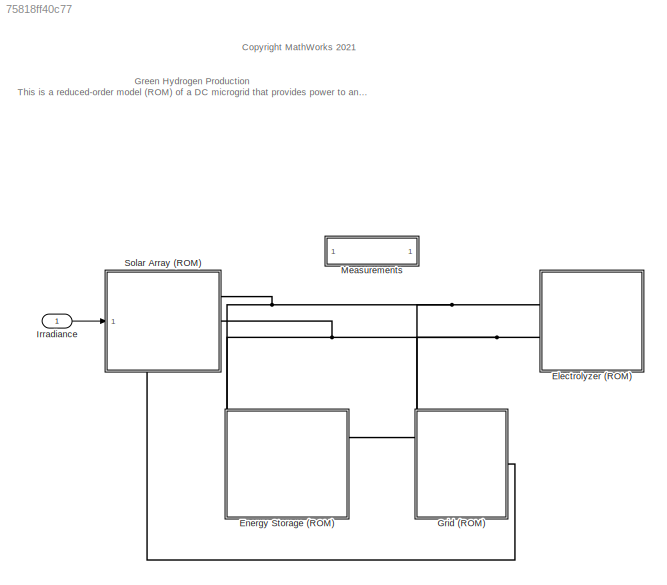
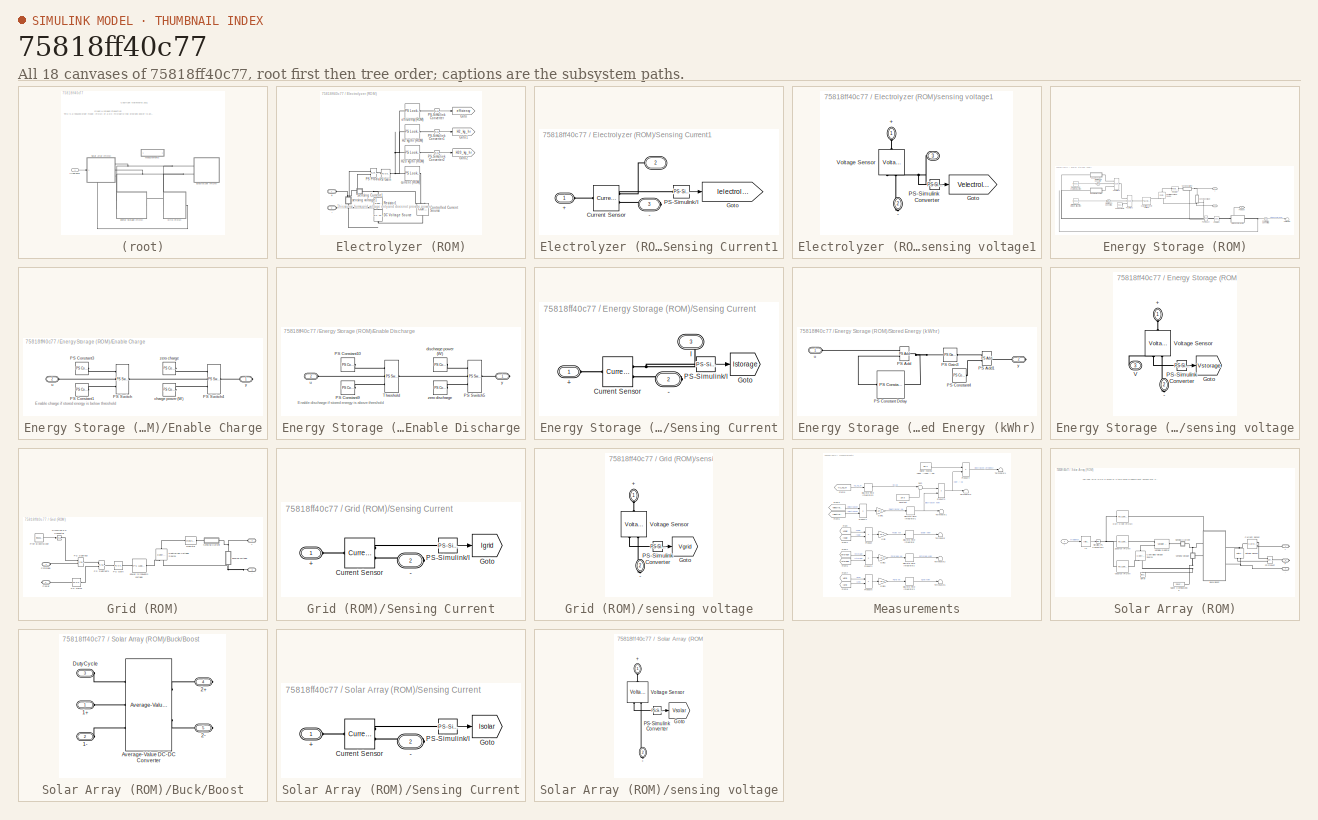
[diagram: thumbnail index - all 18 canvases of the model, root first then tree order]
MODEL slx_75818ff40c77
KIND model
CONFIG AbsTol = 1e-3
CONFIG EnableMultiTasking = off
CONFIG FixedStep = Ts
CONFIG InitFcn = Ts = 3600;\n\n
CONFIG MaxStep = auto
CONFIG MinStep = auto
CONFIG RelTol = 1e-3
CONFIG SampleTimeConstraint = Unconstrained
CONFIG SolverName = FixedStepAuto
CONFIG StartTime = 0.0
CONFIG StopFcn = ee_addSimlogTimeStamp(bdroot)
CONFIG StopTime = 24*3600*365-3600
BLOCK [SubSystem] Electrolyzer (ROM)
  NameLocation = top
  Ports = [0, 0, 0, 0, 0, 2]
  RequestExecContextInheritance = off
BLOCK [PMIOPort] Electrolyzer (ROM)/+
  Side = Left
BLOCK [PMIOPort] Electrolyzer (ROM)/-
  Port = 2
  Side = Left
BLOCK [Reference] Electrolyzer (ROM)/Controlled Current Source  REF=fl_lib/Electrical/Electrical Sources/Controlled Current
Source
  NameLocation = left
  Ports = [0, 0, 0, 0, 0, 1, 2]
  SourceBlock = fl_lib/Electrical/Electrical Sources/Controlled Current\nSource
  SourceProductBaseCode = SS
  SourceType = Controlled Current\nSource
BLOCK [Reference] Electrolyzer (ROM)/DC Voltage Source  REF=fl_lib/Electrical/Electrical Sources/DC Voltage Source
  NameLocation = right
  Ports = [0, 0, 0, 0, 0, 1, 1]
  SourceBlock = fl_lib/Electrical/Electrical Sources/DC Voltage Source
  SourceProductBaseCode = SS
  SourceType = DC Voltage Source
BLOCK [Goto] Electrolyzer (ROM)/Goto
  GotoTag = efficiency
  TagVisibility = global
BLOCK [Goto] Electrolyzer (ROM)/Goto1
  GotoTag = H2_kg_hr
  TagVisibility = global
BLOCK [Goto] Electrolyzer (ROM)/Goto2
  GotoTag = H20_kg_hr
  TagVisibility = global
BLOCK [Reference] Electrolyzer (ROM)/H2 kg//hr (ROM)  REF=fl_lib/Physical Signals/Lookup Tables/PS Lookup Table (1D)
  Ports = [0, 0, 0, 0, 0, 1, 1]
  SourceBlock = fl_lib/Physical Signals/Lookup Tables/PS Lookup Table (1D)
  SourceProductBaseCode = SS
  SourceType = PS Lookup Table (1D)
BLOCK [Reference] Electrolyzer (ROM)/H20 kg//hr (ROM)  REF=fl_lib/Physical Signals/Lookup Tables/PS Lookup Table (1D)
  Ports = [0, 0, 0, 0, 0, 1, 1]
  SourceBlock = fl_lib/Physical Signals/Lookup Tables/PS Lookup Table (1D)
  SourceProductBaseCode = SS
  SourceType = PS Lookup Table (1D)
BLOCK [Reference] Electrolyzer (ROM)/PS Gain  REF=fl_lib/Physical Signals/Functions/PS Gain
  Ports = [0, 0, 0, 0, 0, 1, 1]
  SourceBlock = fl_lib/Physical Signals/Functions/PS Gain
  SourceProductBaseCode = SS
  SourceType = PS Gain
BLOCK [Reference] Electrolyzer (ROM)/PS Product  REF=fl_lib/Physical Signals/Functions/PS Product
  Ports = [0, 0, 0, 0, 0, 2, 1]
  SourceBlock = fl_lib/Physical Signals/Functions/PS Product
  SourceProductBaseCode = SS
  SourceType = PS Product
BLOCK [Reference] Electrolyzer (ROM)/PS-Simulink Converter  REF=nesl_utility/PS-Simulink
Converter
  Ports = [0, 1, 0, 0, 0, 1]
  SourceBlock = nesl_utility/PS-Simulink\nConverter
  SourceProductBaseCode = PW,SS
  SourceType = PS-Simulink\nConverter
BLOCK [Reference] Electrolyzer (ROM)/PS-Simulink Converter1  REF=nesl_utility/PS-Simulink
Converter
  Ports = [0, 1, 0, 0, 0, 1]
  SourceBlock = nesl_utility/PS-Simulink\nConverter
  SourceProductBaseCode = PW,SS
  SourceType = PS-Simulink\nConverter
BLOCK [Reference] Electrolyzer (ROM)/PS-Simulink Converter2  REF=nesl_utility/PS-Simulink
Converter
  Ports = [0, 1, 0, 0, 0, 1]
  SourceBlock = nesl_utility/PS-Simulink\nConverter
  SourceProductBaseCode = PW,SS
  SourceType = PS-Simulink\nConverter
BLOCK [Reference] Electrolyzer (ROM)/Resistor1  REF=fl_lib/Electrical/Electrical Elements/Resistor
  NameLocation = left
  Ports = [0, 0, 0, 0, 0, 1, 1]
  SourceBlock = fl_lib/Electrical/Electrical Elements/Resistor
  SourceProductBaseCode = SS
  SourceType = Resistor
BLOCK [SubSystem] Electrolyzer (ROM)/Sensing Current1
  PortSchema = {"entries":[{"content":{"sides":[{"content":{"connectorIds":["LConn1"]},"type":"ConnectorPlacement.EquallySpacedRectSide","uuid":"b94629f0-79a7-4e9f-9b19-2ebf3bcf4c67"},{"content":{"connectorIds":["RConn1"],"side":"RIGHT"},"type":"ConnectorPlacement.EquallySpacedRectSide","uuid":"77befbbf-81fe-4980-a27e-5f206100ddc5"},{"content":{"connectorIds":["LConn2"],"side":"TOP"},"type":"ConnectorPlacement.E...<+253ch>
  Ports = [0, 0, 0, 0, 0, 2, 1]
  RequestExecContextInheritance = off
BLOCK [PMIOPort] Electrolyzer (ROM)/Sensing Current1/ 
  Port = 2
  Side = Left
BLOCK [PMIOPort] Electrolyzer (ROM)/Sensing Current1/+
  Side = Left
BLOCK [PMIOPort] Electrolyzer (ROM)/Sensing Current1/-
  Port = 3
  Side = Right
BLOCK [Reference] Electrolyzer (ROM)/Sensing Current1/Current Sensor  REF=fl_lib/Electrical/Electrical Sensors/Current Sensor
  Ports = [0, 0, 0, 0, 0, 1, 2]
  SourceBlock = fl_lib/Electrical/Electrical Sensors/Current Sensor
  SourceProductBaseCode = SS
  SourceType = Current Sensor
BLOCK [Goto] Electrolyzer (ROM)/Sensing Current1/Goto
  GotoTag = Ielectrolyzer
  TagVisibility = global
BLOCK [Reference] Electrolyzer (ROM)/Sensing Current1/PS-Simulink//I  REF=nesl_utility/PS-Simulink
Converter
  Ports = [0, 1, 0, 0, 0, 1]
  SourceBlock = nesl_utility/PS-Simulink\nConverter
  SourceProductBaseCode = PW,SS
  SourceType = PS-Simulink\nConverter
BLOCK [Reference] Electrolyzer (ROM)/current (ROM)  REF=fl_lib/Physical Signals/Lookup Tables/PS Lookup Table (1D)
  Ports = [0, 0, 0, 0, 0, 1, 1]
  SourceBlock = fl_lib/Physical Signals/Lookup Tables/PS Lookup Table (1D)
  SourceProductBaseCode = SS
  SourceType = PS Lookup Table (1D)
BLOCK [Reference] Electrolyzer (ROM)/efficiency (ROM)  REF=fl_lib/Physical Signals/Lookup Tables/PS Lookup Table (1D)
  Ports = [0, 0, 0, 0, 0, 1, 1]
  SourceBlock = fl_lib/Physical Signals/Lookup Tables/PS Lookup Table (1D)
  SourceProductBaseCode = SS
  SourceType = PS Lookup Table (1D)
BLOCK [SubSystem] Electrolyzer (ROM)/sensing voltage1
  NameLocation = left
  Ports = [0, 0, 0, 0, 0, 2, 1]
  RequestExecContextInheritance = off
BLOCK [PMIOPort] Electrolyzer (ROM)/sensing voltage1/ 
  NameLocation = top
  Port = 3
  Side = Left
BLOCK [PMIOPort] Electrolyzer (ROM)/sensing voltage1/+
  NameLocation = left
  Side = Left
BLOCK [PMIOPort] Electrolyzer (ROM)/sensing voltage1/-
  NameLocation = left
  Port = 2
  Side = Right
BLOCK [Goto] Electrolyzer (ROM)/sensing voltage1/Goto
  GotoTag = Velectrolyzer
  TagVisibility = global
BLOCK [Reference] Electrolyzer (ROM)/sensing voltage1/PS-Simulink Converter  REF=nesl_utility/PS-Simulink
Converter
  Ports = [0, 1, 0, 0, 0, 1]
  SourceBlock = nesl_utility/PS-Simulink\nConverter
  SourceProductBaseCode = PW,SS
  SourceType = PS-Simulink\nConverter
BLOCK [Reference] Electrolyzer (ROM)/sensing voltage1/Voltage Sensor  REF=fl_lib/Electrical/Electrical Sensors/Voltage Sensor
  NameLocation = right
  Ports = [0, 0, 0, 0, 0, 1, 2]
  SourceBlock = fl_lib/Electrical/Electrical Sensors/Voltage Sensor
  SourceProductBaseCode = SS
  SourceType = Voltage Sensor
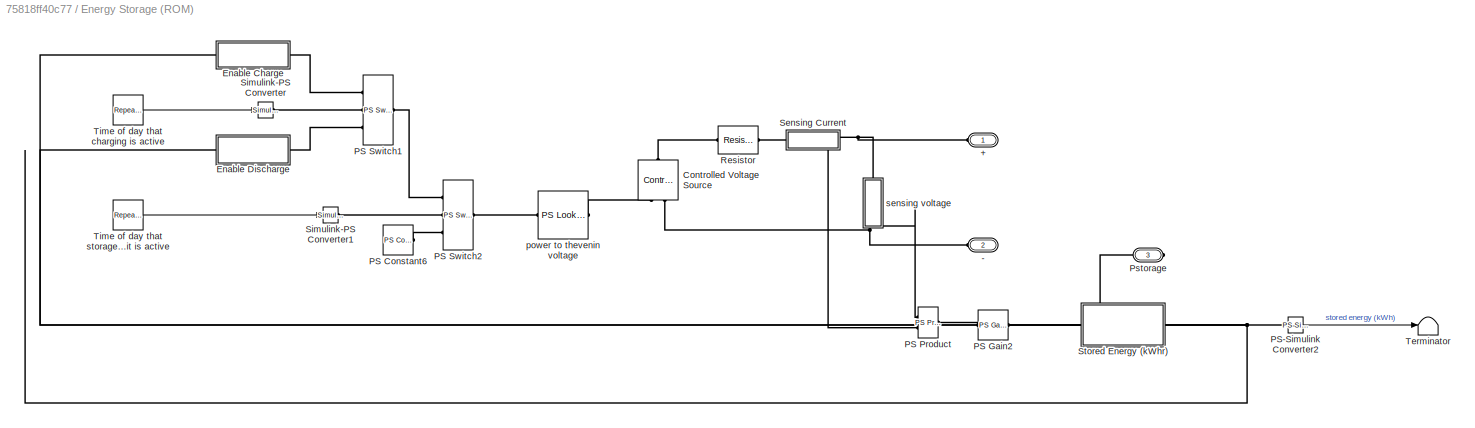
BLOCK [SubSystem] Energy Storage (ROM)
  PortSchema = {"entries":[{"content":{"sides":[{"content":{"connectorIds":[]},"type":"ConnectorPlacement.EquallySpacedRectSide","uuid":"4ce9e896-492d-4425-b4ff-f24d4b5e5863"},{"content":{"connectorIds":["RConn1"],"side":"RIGHT"},"type":"ConnectorPlacement.EquallySpacedRectSide","uuid":"930c7228-c80c-44c8-ab76-5d29522f1c4f"},{"content":{"connectorIds":["LConn1","LConn2"],"side":"TOP"},"type":"ConnectorPlacement....<+254ch>
  Ports = [0, 0, 0, 0, 0, 2, 1]
  RequestExecContextInheritance = off
BLOCK [PMIOPort] Energy Storage (ROM)/+
  NameLocation = top
  Side = Left
BLOCK [PMIOPort] Energy Storage (ROM)/-
  Port = 2
  Side = Left
BLOCK [Reference] Energy Storage (ROM)/Controlled Voltage Source  REF=fl_lib/Electrical/Electrical Sources/Controlled Voltage
Source
  NameLocation = right
  Ports = [0, 0, 0, 0, 0, 1, 2]
  SourceBlock = fl_lib/Electrical/Electrical Sources/Controlled Voltage\nSource
  SourceProductBaseCode = SS
  SourceType = Controlled Voltage\nSource
BLOCK [SubSystem] Energy Storage (ROM)/Enable Charge
  NameLocation = top
  Ports = [0, 0, 0, 0, 0, 1, 1]
  RequestExecContextInheritance = off
BLOCK [Reference] Energy Storage (ROM)/Enable Charge/PS Constant1  REF=fl_lib/Physical Signals/Sources/PS Constant
  Ports = [0, 0, 0, 0, 0, 0, 1]
  SourceBlock = fl_lib/Physical Signals/Sources/PS Constant
  SourceProductBaseCode = SS
  SourceType = PS Constant
BLOCK [Reference] Energy Storage (ROM)/Enable Charge/PS Constant3  REF=fl_lib/Physical Signals/Sources/PS Constant
  Ports = [0, 0, 0, 0, 0, 0, 1]
  SourceBlock = fl_lib/Physical Signals/Sources/PS Constant
  SourceProductBaseCode = SS
  SourceType = PS Constant
BLOCK [Reference] Energy Storage (ROM)/Enable Charge/PS Switch  REF=fl_lib/Physical Signals/Nonlinear Operators/PS Switch
  Ports = [0, 0, 0, 0, 0, 3, 1]
  SourceBlock = fl_lib/Physical Signals/Nonlinear Operators/PS Switch
  SourceProductBaseCode = SS
  SourceType = PS Switch
BLOCK [Reference] Energy Storage (ROM)/Enable Charge/PS Switch4  REF=fl_lib/Physical Signals/Nonlinear Operators/PS Switch
  Ports = [0, 0, 0, 0, 0, 3, 1]
  SourceBlock = fl_lib/Physical Signals/Nonlinear Operators/PS Switch
  SourceProductBaseCode = SS
  SourceType = PS Switch
BLOCK [Reference] Energy Storage (ROM)/Enable Charge/charge power (W)  REF=fl_lib/Physical Signals/Sources/PS Constant
  Ports = [0, 0, 0, 0, 0, 0, 1]
  SourceBlock = fl_lib/Physical Signals/Sources/PS Constant
  SourceProductBaseCode = SS
  SourceType = PS Constant
BLOCK [PMIOPort] Energy Storage (ROM)/Enable Charge/u
  NameLocation = top
  Port = 2
  Side = Left
BLOCK [PMIOPort] Energy Storage (ROM)/Enable Charge/y
  Side = Right
BLOCK [Reference] Energy Storage (ROM)/Enable Charge/zero charge  REF=fl_lib/Physical Signals/Sources/PS Constant
  NameLocation = top
  Ports = [0, 0, 0, 0, 0, 0, 1]
  SourceBlock = fl_lib/Physical Signals/Sources/PS Constant
  SourceProductBaseCode = SS
  SourceType = PS Constant
BLOCK [SubSystem] Energy Storage (ROM)/Enable Discharge
  Ports = [0, 0, 0, 0, 0, 1, 1]
  RequestExecContextInheritance = off
BLOCK [Reference] Energy Storage (ROM)/Enable Discharge/PS Constant10  REF=fl_lib/Physical Signals/Sources/PS Constant
  Ports = [0, 0, 0, 0, 0, 0, 1]
  SourceBlock = fl_lib/Physical Signals/Sources/PS Constant
  SourceProductBaseCode = SS
  SourceType = PS Constant
BLOCK [Reference] Energy Storage (ROM)/Enable Discharge/PS Constant9  REF=fl_lib/Physical Signals/Sources/PS Constant
  Ports = [0, 0, 0, 0, 0, 0, 1]
  SourceBlock = fl_lib/Physical Signals/Sources/PS Constant
  SourceProductBaseCode = SS
  SourceType = PS Constant
BLOCK [Reference] Energy Storage (ROM)/Enable Discharge/PS Switch5  REF=fl_lib/Physical Signals/Nonlinear Operators/PS Switch
  Ports = [0, 0, 0, 0, 0, 3, 1]
  SourceBlock = fl_lib/Physical Signals/Nonlinear Operators/PS Switch
  SourceProductBaseCode = SS
  SourceType = PS Switch
BLOCK [Reference] Energy Storage (ROM)/Enable Discharge/Threshold  REF=fl_lib/Physical Signals/Nonlinear Operators/PS Switch
  Ports = [0, 0, 0, 0, 0, 3, 1]
  SourceBlock = fl_lib/Physical Signals/Nonlinear Operators/PS Switch
  SourceProductBaseCode = SS
  SourceType = PS Switch
BLOCK [Reference] Energy Storage (ROM)/Enable Discharge/discharge power (W)  REF=fl_lib/Physical Signals/Sources/PS Constant
  NameLocation = top
  Ports = [0, 0, 0, 0, 0, 0, 1]
  SourceBlock = fl_lib/Physical Signals/Sources/PS Constant
  SourceProductBaseCode = SS
  SourceType = PS Constant
BLOCK [PMIOPort] Energy Storage (ROM)/Enable Discharge/u
  Port = 2
  Side = Left
BLOCK [PMIOPort] Energy Storage (ROM)/Enable Discharge/y
  Side = Right
BLOCK [Reference] Energy Storage (ROM)/Enable Discharge/zero discharge  REF=fl_lib/Physical Signals/Sources/PS Constant
  Ports = [0, 0, 0, 0, 0, 0, 1]
  SourceBlock = fl_lib/Physical Signals/Sources/PS Constant
  SourceProductBaseCode = SS
  SourceType = PS Constant
BLOCK [Reference] Energy Storage (ROM)/PS Constant6  REF=fl_lib/Physical Signals/Sources/PS Constant
  Ports = [0, 0, 0, 0, 0, 0, 1]
  SourceBlock = fl_lib/Physical Signals/Sources/PS Constant
  SourceProductBaseCode = SS
  SourceType = PS Constant
BLOCK [Reference] Energy Storage (ROM)/PS Gain2  REF=fl_lib/Physical Signals/Functions/PS Gain
  Ports = [0, 0, 0, 0, 0, 1, 1]
  SourceBlock = fl_lib/Physical Signals/Functions/PS Gain
  SourceProductBaseCode = SS
  SourceType = PS Gain
BLOCK [Reference] Energy Storage (ROM)/PS Product  REF=fl_lib/Physical Signals/Functions/PS Product
  Ports = [0, 0, 0, 0, 0, 2, 1]
  SourceBlock = fl_lib/Physical Signals/Functions/PS Product
  SourceProductBaseCode = SS
  SourceType = PS Product
BLOCK [Reference] Energy Storage (ROM)/PS Switch1  REF=fl_lib/Physical Signals/Nonlinear Operators/PS Switch
  Ports = [0, 0, 0, 0, 0, 3, 1]
  SourceBlock = fl_lib/Physical Signals/Nonlinear Operators/PS Switch
  SourceProductBaseCode = SS
  SourceType = PS Switch
BLOCK [Reference] Energy Storage (ROM)/PS Switch2  REF=fl_lib/Physical Signals/Nonlinear Operators/PS Switch
  Ports = [0, 0, 0, 0, 0, 3, 1]
  SourceBlock = fl_lib/Physical Signals/Nonlinear Operators/PS Switch
  SourceProductBaseCode = SS
  SourceType = PS Switch
BLOCK [Reference] Energy Storage (ROM)/PS-Simulink Converter2  REF=nesl_utility/PS-Simulink
Converter
  Ports = [0, 1, 0, 0, 0, 1]
  SourceBlock = nesl_utility/PS-Simulink\nConverter
  SourceProductBaseCode = PW,SS
  SourceType = PS-Simulink\nConverter
BLOCK [PMIOPort] Energy Storage (ROM)/Pstorage
  NameLocation = top
  Port = 3
  Side = Right
BLOCK [Reference] Energy Storage (ROM)/Resistor  REF=fl_lib/Electrical/Electrical Elements/Resistor
  NameLocation = top
  Ports = [0, 0, 0, 0, 0, 1, 1]
  SourceBlock = fl_lib/Electrical/Electrical Elements/Resistor
  SourceProductBaseCode = SS
  SourceType = Resistor
BLOCK [SubSystem] Energy Storage (ROM)/Sensing Current
  PortSchema = {"entries":[{"content":{"sides":[{"content":{"connectorIds":["LConn1"]},"type":"ConnectorPlacement.EquallySpacedRectSide","uuid":"c99cf1a8-fc4f-439f-81a5-065ef56794a1"},{"content":{"connectorIds":["RConn1"],"side":"RIGHT"},"type":"ConnectorPlacement.EquallySpacedRectSide","uuid":"2fde9b7a-e051-4c9e-865a-56b031831294"},{"content":{"connectorIds":[],"side":"TOP"},"type":"ConnectorPlacement.EquallySp...<+397ch>
  Ports = [0, 0, 0, 0, 0, 1, 2]
  RequestExecContextInheritance = off
BLOCK [PMIOPort] Energy Storage (ROM)/Sensing Current/+
  Side = Left
BLOCK [PMIOPort] Energy Storage (ROM)/Sensing Current/-
  Port = 2
  Side = Right
BLOCK [Reference] Energy Storage (ROM)/Sensing Current/Current Sensor  REF=fl_lib/Electrical/Electrical Sensors/Current Sensor
  Ports = [0, 0, 0, 0, 0, 1, 2]
  SourceBlock = fl_lib/Electrical/Electrical Sensors/Current Sensor
  SourceProductBaseCode = SS
  SourceType = Current Sensor
BLOCK [Goto] Energy Storage (ROM)/Sensing Current/Goto
  GotoTag = Istorage
  TagVisibility = global
BLOCK [PMIOPort] Energy Storage (ROM)/Sensing Current/I
  Port = 3
  Side = Right
BLOCK [Reference] Energy Storage (ROM)/Sensing Current/PS-Simulink//I  REF=nesl_utility/PS-Simulink
Converter
  Ports = [0, 1, 0, 0, 0, 1]
  SourceBlock = nesl_utility/PS-Simulink\nConverter
  SourceProductBaseCode = PW,SS
  SourceType = PS-Simulink\nConverter
BLOCK [Reference] Energy Storage (ROM)/Simulink-PS Converter  REF=nesl_utility/Simulink-PS
Converter
  Ports = [1, 0, 0, 0, 0, 0, 1]
  SourceBlock = nesl_utility/Simulink-PS\nConverter
  SourceProductBaseCode = PW,SS
  SourceType = Simulink-PS\nConverter
BLOCK [Reference] Energy Storage (ROM)/Simulink-PS Converter1  REF=nesl_utility/Simulink-PS
Converter
  Ports = [1, 0, 0, 0, 0, 0, 1]
  SourceBlock = nesl_utility/Simulink-PS\nConverter
  SourceProductBaseCode = PW,SS
  SourceType = Simulink-PS\nConverter
BLOCK [SubSystem] Energy Storage (ROM)/Stored Energy (kWhr)
  Ports = [0, 0, 0, 0, 0, 1, 1]
  RequestExecContextInheritance = off
BLOCK [Reference] Energy Storage (ROM)/Stored Energy (kWhr)/PS Add  REF=fl_lib/Physical Signals/Functions/PS Add
  Ports = [0, 0, 0, 0, 0, 2, 1]
  SourceBlock = fl_lib/Physical Signals/Functions/PS Add
  SourceProductBaseCode = SS
  SourceType = PS Add
BLOCK [Reference] Energy Storage (ROM)/Stored Energy (kWhr)/PS Add1  REF=fl_lib/Physical Signals/Functions/PS Add
  Ports = [0, 0, 0, 0, 0, 2, 1]
  SourceBlock = fl_lib/Physical Signals/Functions/PS Add
  SourceProductBaseCode = SS
  SourceType = PS Add
BLOCK [Reference] Energy Storage (ROM)/Stored Energy (kWhr)/PS Constant Delay  REF=fl_lib/Physical Signals/Delays/PS Constant Delay
  Ports = [0, 0, 0, 0, 0, 1, 1]
  SourceBlock = fl_lib/Physical Signals/Delays/PS Constant Delay
  SourceProductBaseCode = SS
  SourceType = PS Constant Delay
BLOCK [Reference] Energy Storage (ROM)/Stored Energy (kWhr)/PS Constant4  REF=fl_lib/Physical Signals/Sources/PS Constant
  Ports = [0, 0, 0, 0, 0, 0, 1]
  SourceBlock = fl_lib/Physical Signals/Sources/PS Constant
  SourceProductBaseCode = SS
  SourceType = PS Constant
BLOCK [Reference] Energy Storage (ROM)/Stored Energy (kWhr)/PS Gain3  REF=fl_lib/Physical Signals/Functions/PS Gain
  Ports = [0, 0, 0, 0, 0, 1, 1]
  SourceBlock = fl_lib/Physical Signals/Functions/PS Gain
  SourceProductBaseCode = SS
  SourceType = PS Gain
BLOCK [PMIOPort] Energy Storage (ROM)/Stored Energy (kWhr)/u
  Side = Left
BLOCK [PMIOPort] Energy Storage (ROM)/Stored Energy (kWhr)/y
  Port = 2
  Side = Right
BLOCK [Terminator] Energy Storage (ROM)/Terminator
BLOCK [Reference] Energy Storage (ROM)/Time of day that charging is active  REF=simulink/Sources/Repeating
Sequence
Interpolated
  NameLocation = top
  Ports = [0, 1]
  SourceBlock = simulink/Sources/Repeating\nSequence\nInterpolated
  SourceProductBaseCode = SL
  SourceType = Repeating Sequence Interpolated
BLOCK [Reference] Energy Storage (ROM)/Time of day that storage unit is active  REF=simulink/Sources/Repeating
Sequence
Interpolated
  Ports = [0, 1]
  SourceBlock = simulink/Sources/Repeating\nSequence\nInterpolated
  SourceProductBaseCode = SL
  SourceType = Repeating Sequence Interpolated
BLOCK [Reference] Energy Storage (ROM)/power to thevenin voltage  REF=fl_lib/Physical Signals/Lookup Tables/PS Lookup Table (1D)
  Ports = [0, 0, 0, 0, 0, 1, 1]
  SourceBlock = fl_lib/Physical Signals/Lookup Tables/PS Lookup Table (1D)
  SourceProductBaseCode = SS
  SourceType = PS Lookup Table (1D)
BLOCK [SubSystem] Energy Storage (ROM)/sensing voltage
  NameLocation = left
  PortSchema = {"entries":[{"content":{"sides":[{"content":{"connectorIds":["LConn1"]},"type":"ConnectorPlacement.EquallySpacedRectSide","uuid":"174cc4c7-8d7f-48d2-a7e2-2f35130ccdcd"},{"content":{"connectorIds":["RConn1"],"side":"RIGHT"},"type":"ConnectorPlacement.EquallySpacedRectSide","uuid":"9e60102e-41cf-47d2-a399-aa8583a1bfd5"},{"content":{"connectorIds":[],"side":"TOP"},"type":"ConnectorPlacement.EquallySp...<+397ch>
  Ports = [0, 0, 0, 0, 0, 1, 2]
  RequestExecContextInheritance = off
BLOCK [PMIOPort] Energy Storage (ROM)/sensing voltage/+
  NameLocation = left
  Side = Left
BLOCK [PMIOPort] Energy Storage (ROM)/sensing voltage/-
  NameLocation = left
  Port = 2
  Side = Right
BLOCK [Goto] Energy Storage (ROM)/sensing voltage/Goto
  GotoTag = Vstorage
  TagVisibility = global
BLOCK [Reference] Energy Storage (ROM)/sensing voltage/PS-Simulink Converter  REF=nesl_utility/PS-Simulink
Converter
  Ports = [0, 1, 0, 0, 0, 1]
  SourceBlock = nesl_utility/PS-Simulink\nConverter
  SourceProductBaseCode = PW,SS
  SourceType = PS-Simulink\nConverter
BLOCK [PMIOPort] Energy Storage (ROM)/sensing voltage/V
  Port = 3
  Side = Right
BLOCK [Reference] Energy Storage (ROM)/sensing voltage/Voltage Sensor  REF=fl_lib/Electrical/Electrical Sensors/Voltage Sensor
  NameLocation = right
  Ports = [0, 0, 0, 0, 0, 1, 2]
  SourceBlock = fl_lib/Electrical/Electrical Sensors/Voltage Sensor
  SourceProductBaseCode = SS
  SourceType = Voltage Sensor
BLOCK [SubSystem] Grid (ROM)
  PortSchema = {"entries":[{"content":{"sides":[{"content":{"connectorIds":["LConn1"]},"type":"ConnectorPlacement.EquallySpacedRectSide","uuid":"4ce9e896-492d-4425-b4ff-f24d4b5e5863"},{"content":{"connectorIds":["RConn1"],"side":"RIGHT"},"type":"ConnectorPlacement.EquallySpacedRectSide","uuid":"930c7228-c80c-44c8-ab76-5d29522f1c4f"},{"content":{"connectorIds":["LConn2","LConn3"],"side":"TOP"},"type":"ConnectorPl...<+406ch>
  Ports = [0, 0, 0, 0, 0, 3, 1]
  RequestExecContextInheritance = off
BLOCK [PMIOPort] Grid (ROM)/+
  NameLocation = top
  Port = 2
  Side = Left
BLOCK [PMIOPort] Grid (ROM)/-
  Port = 3
  Side = Left
BLOCK [Reference] Grid (ROM)/Controlled Voltage Source  REF=fl_lib/Electrical/Electrical Sources/Controlled Voltage
Source
  NameLocation = right
  Ports = [0, 0, 0, 0, 0, 1, 2]
  SourceBlock = fl_lib/Electrical/Electrical Sources/Controlled Voltage\nSource
  SourceProductBaseCode = SS
  SourceType = Controlled Voltage\nSource
BLOCK [Reference] Grid (ROM)/PS Gain  REF=fl_lib/Physical Signals/Functions/PS Gain
  Ports = [0, 0, 0, 0, 0, 1, 1]
  SourceBlock = fl_lib/Physical Signals/Functions/PS Gain
  SourceProductBaseCode = SS
  SourceType = PS Gain
BLOCK [Reference] Grid (ROM)/PS Gain1  REF=fl_lib/Physical Signals/Functions/PS Gain
  Ports = [0, 0, 0, 0, 0, 1, 1]
  SourceBlock = fl_lib/Physical Signals/Functions/PS Gain
  SourceProductBaseCode = SS
  SourceType = PS Gain
BLOCK [Reference] Grid (ROM)/PS Subtract  REF=fl_lib/Physical Signals/Functions/PS Subtract
  Ports = [0, 0, 0, 0, 0, 2, 1]
  SourceBlock = fl_lib/Physical Signals/Functions/PS Subtract
  SourceProductBaseCode = SS
  SourceType = PS Subtract
BLOCK [Reference] Grid (ROM)/PS Subtract1  REF=fl_lib/Physical Signals/Functions/PS Subtract
  Ports = [0, 0, 0, 0, 0, 2, 1]
  SourceBlock = fl_lib/Physical Signals/Functions/PS Subtract
  SourceProductBaseCode = SS
  SourceType = PS Subtract
BLOCK [Reference] Grid (ROM)/Pref Electrolyzer  REF=simulink/Sources/Repeating
Sequence
Interpolated
  Ports = [0, 1]
  SourceBlock = simulink/Sources/Repeating\nSequence\nInterpolated
  SourceProductBaseCode = SL
  SourceType = Repeating Sequence Interpolated
BLOCK [PMIOPort] Grid (ROM)/Psolar
  Port = 4
  Side = Right
BLOCK [PMIOPort] Grid (ROM)/Pstorage
  Side = Left
BLOCK [Reference] Grid (ROM)/Resistor  REF=fl_lib/Electrical/Electrical Elements/Resistor
  NameLocation = top
  Ports = [0, 0, 0, 0, 0, 1, 1]
  SourceBlock = fl_lib/Electrical/Electrical Elements/Resistor
  SourceProductBaseCode = SS
  SourceType = Resistor
BLOCK [SubSystem] Grid (ROM)/Sensing Current
  Ports = [0, 0, 0, 0, 0, 1, 1]
  RequestExecContextInheritance = off
BLOCK [PMIOPort] Grid (ROM)/Sensing Current/+
  Side = Left
BLOCK [PMIOPort] Grid (ROM)/Sensing Current/-
  Port = 2
  Side = Right
BLOCK [Reference] Grid (ROM)/Sensing Current/Current Sensor  REF=fl_lib/Electrical/Electrical Sensors/Current Sensor
  Ports = [0, 0, 0, 0, 0, 1, 2]
  SourceBlock = fl_lib/Electrical/Electrical Sensors/Current Sensor
  SourceProductBaseCode = SS
  SourceType = Current Sensor
BLOCK [Goto] Grid (ROM)/Sensing Current/Goto
  GotoTag = Igrid
  TagVisibility = global
BLOCK [Reference] Grid (ROM)/Sensing Current/PS-Simulink//I  REF=nesl_utility/PS-Simulink
Converter
  Ports = [0, 1, 0, 0, 0, 1]
  SourceBlock = nesl_utility/PS-Simulink\nConverter
  SourceProductBaseCode = PW,SS
  SourceType = PS-Simulink\nConverter
BLOCK [Reference] Grid (ROM)/Simulink-PS Converter  REF=nesl_utility/Simulink-PS
Converter
  Ports = [1, 0, 0, 0, 0, 0, 1]
  SourceBlock = nesl_utility/Simulink-PS\nConverter
  SourceProductBaseCode = PW,SS
  SourceType = Simulink-PS\nConverter
BLOCK [Reference] Grid (ROM)/power to thevenin voltage  REF=fl_lib/Physical Signals/Lookup Tables/PS Lookup Table (1D)
  Ports = [0, 0, 0, 0, 0, 1, 1]
  SourceBlock = fl_lib/Physical Signals/Lookup Tables/PS Lookup Table (1D)
  SourceProductBaseCode = SS
  SourceType = PS Lookup Table (1D)
BLOCK [SubSystem] Grid (ROM)/sensing voltage
  NameLocation = left
  Ports = [0, 0, 0, 0, 0, 1, 1]
  RequestExecContextInheritance = off
BLOCK [PMIOPort] Grid (ROM)/sensing voltage/+
  NameLocation = left
  Side = Left
BLOCK [PMIOPort] Grid (ROM)/sensing voltage/-
  NameLocation = left
  Port = 2
  Side = Right
BLOCK [Goto] Grid (ROM)/sensing voltage/Goto
  GotoTag = Vgrid
  TagVisibility = global
BLOCK [Reference] Grid (ROM)/sensing voltage/PS-Simulink Converter  REF=nesl_utility/PS-Simulink
Converter
  Ports = [0, 1, 0, 0, 0, 1]
  SourceBlock = nesl_utility/PS-Simulink\nConverter
  SourceProductBaseCode = PW,SS
  SourceType = PS-Simulink\nConverter
BLOCK [Reference] Grid (ROM)/sensing voltage/Voltage Sensor  REF=fl_lib/Electrical/Electrical Sensors/Voltage Sensor
  NameLocation = right
  Ports = [0, 0, 0, 0, 0, 1, 2]
  SourceBlock = fl_lib/Electrical/Electrical Sensors/Voltage Sensor
  SourceProductBaseCode = SS
  SourceType = Voltage Sensor
BLOCK [Inport] Irradiance
  PortDimensions = 1
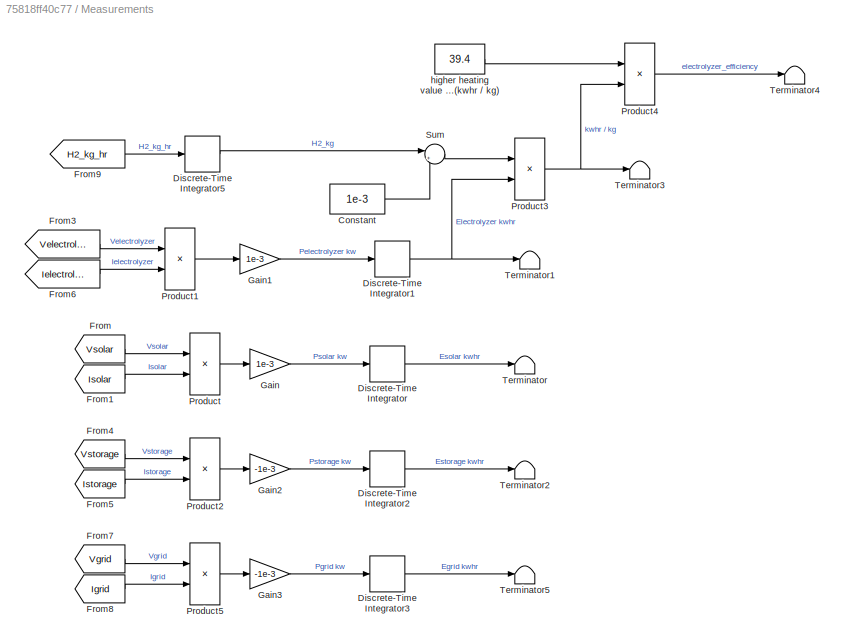
BLOCK [SubSystem] Measurements
  NameLocation = top
  Ports = []
  RequestExecContextInheritance = off
BLOCK [Constant] Measurements/Constant
  SampleTime = Ts
  Value = 1e-3
BLOCK [DiscreteIntegrator] Measurements/Discrete-Time Integrator
  ICPrevOutput = DiscIntNeverNeededParam
  ICPrevScaledInput = DiscIntNeverNeededParam
  InitialConditionSetting = Auto
  Ports = [1, 1]
  SampleTime = -1
  gainval = 1/3600
BLOCK [DiscreteIntegrator] Measurements/Discrete-Time Integrator1
  ICPrevOutput = DiscIntNeverNeededParam
  ICPrevScaledInput = DiscIntNeverNeededParam
  InitialConditionSetting = Auto
  Ports = [1, 1]
  SampleTime = -1
  gainval = 1/3600
BLOCK [DiscreteIntegrator] Measurements/Discrete-Time Integrator2
  ICPrevOutput = DiscIntNeverNeededParam
  ICPrevScaledInput = DiscIntNeverNeededParam
  InitialCondition = 1000
  InitialConditionSetting = Auto
  Ports = [1, 1]
  SampleTime = -1
  gainval = 1/3600
BLOCK [DiscreteIntegrator] Measurements/Discrete-Time Integrator3
  ICPrevOutput = DiscIntNeverNeededParam
  ICPrevScaledInput = DiscIntNeverNeededParam
  InitialCondition = 1000
  InitialConditionSetting = Auto
  Ports = [1, 1]
  SampleTime = -1
  gainval = 1/3600
BLOCK [DiscreteIntegrator] Measurements/Discrete-Time Integrator5
  ICPrevOutput = DiscIntNeverNeededParam
  ICPrevScaledInput = DiscIntNeverNeededParam
  InitialConditionSetting = Auto
  Ports = [1, 1]
  SampleTime = -1
  gainval = 1/3600
BLOCK [From] Measurements/From
  GotoTag = Vsolar
  TagVisibility = global
BLOCK [From] Measurements/From1
  GotoTag = Isolar
  TagVisibility = global
BLOCK [From] Measurements/From3
  GotoTag = Velectrolyzer
  TagVisibility = global
BLOCK [From] Measurements/From4
  GotoTag = Vstorage
  TagVisibility = global
BLOCK [From] Measurements/From5
  GotoTag = Istorage
  TagVisibility = global
BLOCK [From] Measurements/From6
  GotoTag = Ielectrolyzer
  TagVisibility = global
BLOCK [From] Measurements/From7
  GotoTag = Vgrid
  TagVisibility = global
BLOCK [From] Measurements/From8
  GotoTag = Igrid
  TagVisibility = global
BLOCK [From] Measurements/From9
  GotoTag = H2_kg_hr
  TagVisibility = global
BLOCK [Gain] Measurements/Gain
  Gain = 1e-3
BLOCK [Gain] Measurements/Gain1
  Gain = 1e-3
BLOCK [Gain] Measurements/Gain2
  Gain = -1e-3
BLOCK [Gain] Measurements/Gain3
  Gain = -1e-3
BLOCK [Product] Measurements/Product
  Ports = [2, 1]
BLOCK [Product] Measurements/Product1
  Ports = [2, 1]
BLOCK [Product] Measurements/Product2
  Ports = [2, 1]
BLOCK [Product] Measurements/Product3
  Inputs = /*
  Ports = [2, 1]
BLOCK [Product] Measurements/Product4
  Inputs = */
  Ports = [2, 1]
BLOCK [Product] Measurements/Product5
  Ports = [2, 1]
BLOCK [Sum] Measurements/Sum
  Inputs = |++
  Ports = [2, 1]
BLOCK [Terminator] Measurements/Terminator
BLOCK [Terminator] Measurements/Terminator1
BLOCK [Terminator] Measurements/Terminator2
BLOCK [Terminator] Measurements/Terminator3
BLOCK [Terminator] Measurements/Terminator4
BLOCK [Terminator] Measurements/Terminator5
BLOCK [Constant] Measurements/higher heating value of H2 (kwhr // kg)
  SampleTime = Ts
  Value = 39.4
BLOCK [SubSystem] Solar Array (ROM)
  NameLocation = top
  PortSchema = {"entries":[{"content":{"sides":[{"content":{"connectorIds":["In1"]},"type":"ConnectorPlacement.EquallySpacedRectSide","uuid":"a867b3ed-c44d-46d3-b035-bd7f0843dcab"},{"content":{"connectorIds":["RConn1","RConn2"],"side":"RIGHT"},"type":"ConnectorPlacement.EquallySpacedRectSide","uuid":"5b118fd7-24ef-441f-9afe-5591aca8fd6c"},{"content":{"connectorIds":[],"side":"TOP"},"type":"ConnectorPlacement.Equ...<+403ch>
  Ports = [1, 0, 0, 0, 0, 0, 3]
  RequestExecContextInheritance = off
BLOCK [PMIOPort] Solar Array (ROM)/+
  Side = Right
BLOCK [PMIOPort] Solar Array (ROM)/-
  Port = 2
  Side = Right
BLOCK [SubSystem] Solar Array (ROM)/Buck//Boost
  PortSchema = {"entries":[{"content":{"sides":[{"content":{"connectorIds":["LConn1","LConn2"]},"type":"ConnectorPlacement.EquallySpacedRectSide","uuid":"59b30d2c-2033-428e-a6b3-b4d8d7ac74c4"},{"content":{"connectorIds":["RConn1","RConn2"],"side":"RIGHT"},"type":"ConnectorPlacement.EquallySpacedRectSide","uuid":"63b32dc2-a1f5-4b5e-a815-fc0940ceb55f"},{"content":{"connectorIds":["LConn3"],"side":"TOP"},"type":"Co...<+271ch>
  Ports = [0, 0, 0, 0, 0, 3, 2]
  RequestExecContextInheritance = off
BLOCK [PMIOPort] Solar Array (ROM)/Buck//Boost/1+
  Side = Left
BLOCK [PMIOPort] Solar Array (ROM)/Buck//Boost/1-
  Port = 2
  Side = Left
BLOCK [PMIOPort] Solar Array (ROM)/Buck//Boost/2+
  Port = 4
  Side = Right
BLOCK [PMIOPort] Solar Array (ROM)/Buck//Boost/2-
  Port = 5
  Side = Right
BLOCK [Reference] Solar Array (ROM)/Buck//Boost/Average-Value DC-DC Converter  REF=ee_lib/Semiconductors &
Converters/Converters/Average-Value DC-DC
Converter
  Ports = [0, 0, 0, 0, 0, 3, 2]
  SourceBlock = ee_lib/Semiconductors &\nConverters/Converters/Average-Value DC-DC\nConverter
  SourceProductBaseCode = PS
  SourceType = Average-Value DC-DC\nConverter
BLOCK [PMIOPort] Solar Array (ROM)/Buck//Boost/DutyCycle
  Port = 3
  Side = Left
BLOCK [Reference] Solar Array (ROM)/Controlled Voltage Source  REF=fl_lib/Electrical/Electrical Sources/Controlled Voltage
Source
  NameLocation = right
  Ports = [0, 0, 0, 0, 0, 1, 2]
  SourceBlock = fl_lib/Electrical/Electrical Sources/Controlled Voltage\nSource
  SourceProductBaseCode = SS
  SourceType = Controlled Voltage\nSource
BLOCK [Reference] Solar Array (ROM)/Current Sensor  REF=fl_lib/Electrical/Electrical Sensors/Current Sensor
  Ports = [0, 0, 0, 0, 0, 1, 2]
  SourceBlock = fl_lib/Electrical/Electrical Sensors/Current Sensor
  SourceProductBaseCode = SS
  SourceType = Current Sensor
BLOCK [Reference] Solar Array (ROM)/Duty Cycle (ROM)  REF=fl_lib/Physical Signals/Lookup Tables/PS Lookup Table (1D)
  Ports = [0, 0, 0, 0, 0, 1, 1]
  SourceBlock = fl_lib/Physical Signals/Lookup Tables/PS Lookup Table (1D)
  SourceProductBaseCode = SS
  SourceType = PS Lookup Table (1D)
BLOCK [Reference] Solar Array (ROM)/ERef  REF=fl_lib/Electrical/Electrical Elements/Electrical Reference
  NameLocation = right
  Ports = [0, 0, 0, 0, 0, 1]
  SourceBlock = fl_lib/Electrical/Electrical Elements/Electrical Reference
  SourceProductBaseCode = SS
  SourceType = Electrical Reference
BLOCK [Inport] Solar Array (ROM)/I
BLOCK [InitialCondition] Solar Array (ROM)/IC
  Value = 10000
BLOCK [PMIOPort] Solar Array (ROM)/P
  NameLocation = top
  Port = 3
  Side = Right
BLOCK [Reference] Solar Array (ROM)/PS Product  REF=fl_lib/Physical Signals/Functions/PS Product
  Ports = [0, 0, 0, 0, 0, 2, 1]
  SourceBlock = fl_lib/Physical Signals/Functions/PS Product
  SourceProductBaseCode = SS
  SourceType = PS Product
BLOCK [SubSystem] Solar Array (ROM)/Sensing Current
  Ports = [0, 0, 0, 0, 0, 1, 1]
  RequestExecContextInheritance = off
BLOCK [PMIOPort] Solar Array (ROM)/Sensing Current/+
  Side = Left
BLOCK [PMIOPort] Solar Array (ROM)/Sensing Current/-
  Port = 2
  Side = Right
BLOCK [Reference] Solar Array (ROM)/Sensing Current/Current Sensor  REF=fl_lib/Electrical/Electrical Sensors/Current Sensor
  Ports = [0, 0, 0, 0, 0, 1, 2]
  SourceBlock = fl_lib/Electrical/Electrical Sensors/Current Sensor
  SourceProductBaseCode = SS
  SourceType = Current Sensor
BLOCK [Goto] Solar Array (ROM)/Sensing Current/Goto
  GotoTag = Isolar
  TagVisibility = global
BLOCK [Reference] Solar Array (ROM)/Sensing Current/PS-Simulink//I  REF=nesl_utility/PS-Simulink
Converter
  Ports = [0, 1, 0, 0, 0, 1]
  SourceBlock = nesl_utility/PS-Simulink\nConverter
  SourceProductBaseCode = PW,SS
  SourceType = PS-Simulink\nConverter
BLOCK [Reference] Solar Array (ROM)/Simulink-PS Converter2  REF=nesl_utility/Simulink-PS
Converter
  Ports = [1, 0, 0, 0, 0, 0, 1]
  SourceBlock = nesl_utility/Simulink-PS\nConverter
  SourceProductBaseCode = PW,SS
  SourceType = Simulink-PS\nConverter
BLOCK [Reference] Solar Array (ROM)/Solver Configuration  REF=nesl_utility/Solver
Configuration
  Ports = [0, 0, 0, 0, 0, 0, 1]
  SourceBlock = nesl_utility/Solver\nConfiguration
  SourceProductBaseCode = PW,SS
  SourceType = Solver\nConfiguration
BLOCK [Reference] Solar Array (ROM)/Variable Resistor  REF=fl_lib/Electrical/Electrical Elements/Variable Resistor
  Ports = [0, 0, 0, 0, 0, 2, 1]
  SourceBlock = fl_lib/Electrical/Electrical Elements/Variable Resistor
  SourceProductBaseCode = SS
  SourceType = Variable Resistor
BLOCK [Reference] Solar Array (ROM)/Voltage Sensor  REF=fl_lib/Electrical/Electrical Sensors/Voltage Sensor
  NameLocation = right
  Ports = [0, 0, 0, 0, 0, 1, 2]
  SourceBlock = fl_lib/Electrical/Electrical Sensors/Voltage Sensor
  SourceProductBaseCode = SS
  SourceType = Voltage Sensor
BLOCK [Reference] Solar Array (ROM)/Vsource (ROM)  REF=fl_lib/Physical Signals/Lookup Tables/PS Lookup Table (1D)
  Ports = [0, 0, 0, 0, 0, 1, 1]
  SourceBlock = fl_lib/Physical Signals/Lookup Tables/PS Lookup Table (1D)
  SourceProductBaseCode = SS
  SourceType = PS Lookup Table (1D)
BLOCK [Reference] Solar Array (ROM)/Zsource (ROM)  REF=fl_lib/Physical Signals/Lookup Tables/PS Lookup Table (1D)
  Ports = [0, 0, 0, 0, 0, 1, 1]
  SourceBlock = fl_lib/Physical Signals/Lookup Tables/PS Lookup Table (1D)
  SourceProductBaseCode = SS
  SourceType = PS Lookup Table (1D)
BLOCK [SubSystem] Solar Array (ROM)/sensing voltage
  NameLocation = left
  Ports = [0, 0, 0, 0, 0, 1, 1]
  RequestExecContextInheritance = off
BLOCK [PMIOPort] Solar Array (ROM)/sensing voltage/+
  NameLocation = left
  Side = Left
BLOCK [PMIOPort] Solar Array (ROM)/sensing voltage/-
  NameLocation = left
  Port = 2
  Side = Right
BLOCK [Goto] Solar Array (ROM)/sensing voltage/Goto
  GotoTag = Vsolar
  TagVisibility = global
BLOCK [Reference] Solar Array (ROM)/sensing voltage/PS-Simulink Converter  REF=nesl_utility/PS-Simulink
Converter
  Ports = [0, 1, 0, 0, 0, 1]
  SourceBlock = nesl_utility/PS-Simulink\nConverter
  SourceProductBaseCode = PW,SS
  SourceType = PS-Simulink\nConverter
BLOCK [Reference] Solar Array (ROM)/sensing voltage/Voltage Sensor  REF=fl_lib/Electrical/Electrical Sensors/Voltage Sensor
  NameLocation = right
  Ports = [0, 0, 0, 0, 0, 1, 2]
  SourceBlock = fl_lib/Electrical/Electrical Sensors/Voltage Sensor
  SourceProductBaseCode = SS
  SourceType = Voltage Sensor
ANNOTATION (root): Green Hydrogen Production This is a reduced-order model (ROM) of a DC microgrid that provides power to an electrolyzer using a solar array and a stylized energy storage system and grid connection. This model can be used to evaluate the operational characteristics of producing green hydrogen over a 1-year period. Time-step is 1 hour.
ANNOTATION (root): <copyright redacted>
ANNOTATION Electrolyzer (ROM): This source forms grid voltage only and does not provide power
ANNOTATION Energy Storage (ROM)/Enable Charge: Enable charge if stored energy is below threshold
ANNOTATION Energy Storage (ROM)/Enable Discharge: Enable discharge if stored energy is above threshold
ANNOTATION Solar Array (ROM): This solar array ROM is driven by a time-series irradiance input defined over a 1-year period. An average-value buck/boost converter is included to ensure that the maximum available power from the solar array is supplied to the microgrid.
LINE Electrolyzer (ROM)/PS-Simulink Converter1:1 -> Electrolyzer (ROM)/Goto1:1
LINE Electrolyzer (ROM)/PS-Simulink Converter2:1 -> Electrolyzer (ROM)/Goto2:1
LINE Electrolyzer (ROM)/PS-Simulink Converter:1 -> Electrolyzer (ROM)/Goto:1
LINE Electrolyzer (ROM)/Sensing Current1/PS-Simulink//I:1 -> Electrolyzer (ROM)/Sensing Current1/Goto:1
LINE Electrolyzer (ROM)/sensing voltage1/PS-Simulink Converter:1 -> Electrolyzer (ROM)/sensing voltage1/Goto:1
LINE Energy Storage (ROM)/PS-Simulink Converter2:1 -> Energy Storage (ROM)/Terminator:1
LINE Energy Storage (ROM)/Sensing Current/PS-Simulink//I:1 -> Energy Storage (ROM)/Sensing Current/Goto:1
LINE Energy Storage (ROM)/Time of day that charging is active:1 -> Energy Storage (ROM)/Simulink-PS Converter:1
LINE Energy Storage (ROM)/Time of day that storage unit is active:1 -> Energy Storage (ROM)/Simulink-PS Converter1:1
LINE Energy Storage (ROM)/sensing voltage/PS-Simulink Converter:1 -> Energy Storage (ROM)/sensing voltage/Goto:1
LINE Grid (ROM)/Pref Electrolyzer:1 -> Grid (ROM)/Simulink-PS Converter:1
LINE Grid (ROM)/Sensing Current/PS-Simulink//I:1 -> Grid (ROM)/Sensing Current/Goto:1
LINE Grid (ROM)/sensing voltage/PS-Simulink Converter:1 -> Grid (ROM)/sensing voltage/Goto:1
LINE Irradiance:1 -> Solar Array (ROM):1
LINE Measurements/Constant:1 -> Measurements/Sum:2
NET Measurements/Discrete-Time Integrator1:1 -> Measurements/Product3:2, Measurements/Terminator1:1
LINE Measurements/Discrete-Time Integrator2:1 -> Measurements/Terminator2:1
LINE Measurements/Discrete-Time Integrator3:1 -> Measurements/Terminator5:1
LINE Measurements/Discrete-Time Integrator5:1 -> Measurements/Sum:1
LINE Measurements/Discrete-Time Integrator:1 -> Measurements/Terminator:1
LINE Measurements/From1:1 -> Measurements/Product:2
LINE Measurements/From3:1 -> Measurements/Product1:1
LINE Measurements/From4:1 -> Measurements/Product2:1
LINE Measurements/From5:1 -> Measurements/Product2:2
LINE Measurements/From6:1 -> Measurements/Product1:2
LINE Measurements/From7:1 -> Measurements/Product5:1
LINE Measurements/From8:1 -> Measurements/Product5:2
LINE Measurements/From9:1 -> Measurements/Discrete-Time Integrator5:1
LINE Measurements/From:1 -> Measurements/Product:1
LINE Measurements/Gain1:1 -> Measurements/Discrete-Time Integrator1:1
LINE Measurements/Gain2:1 -> Measurements/Discrete-Time Integrator2:1
LINE Measurements/Gain3:1 -> Measurements/Discrete-Time Integrator3:1
LINE Measurements/Gain:1 -> Measurements/Discrete-Time Integrator:1
LINE Measurements/Product1:1 -> Measurements/Gain1:1
LINE Measurements/Product2:1 -> Measurements/Gain2:1
NET Measurements/Product3:1 -> Measurements/Product4:2, Measurements/Terminator3:1
LINE Measurements/Product4:1 -> Measurements/Terminator4:1
LINE Measurements/Product5:1 -> Measurements/Gain3:1
LINE Measurements/Product:1 -> Measurements/Gain:1
LINE Measurements/Sum:1 -> Measurements/Product3:1
LINE Measurements/higher heating value of H2 (kwhr // kg):1 -> Measurements/Product4:1
LINE Solar Array (ROM)/I:1 -> Solar Array (ROM)/IC:1
LINE Solar Array (ROM)/IC:1 -> Solar Array (ROM)/Simulink-PS Converter2:1
LINE Solar Array (ROM)/Sensing Current/PS-Simulink//I:1 -> Solar Array (ROM)/Sensing Current/Goto:1
LINE Solar Array (ROM)/sensing voltage/PS-Simulink Converter:1 -> Solar Array (ROM)/sensing voltage/Goto:1
PNET net1: Electrolyzer (ROM)/+:RConn1 -- Electrolyzer (ROM)/Sensing Current1:LConn1 -- Electrolyzer (ROM)/sensing voltage1:LConn1
PNET net2: Electrolyzer (ROM)/-:RConn1 -- Electrolyzer (ROM)/Controlled Current Source:LConn1 -- Electrolyzer (ROM)/DC Voltage Source:RConn1 -- Electrolyzer (ROM)/sensing voltage1:RConn1
PLINE Electrolyzer (ROM)/Controlled Current Source:RConn1 -- Electrolyzer (ROM)/current (ROM):RConn1
PNET net3: Electrolyzer (ROM)/Controlled Current Source:RConn2 -- Electrolyzer (ROM)/Resistor1:LConn1 -- Electrolyzer (ROM)/Sensing Current1:RConn1
PLINE Electrolyzer (ROM)/DC Voltage Source:LConn1 -- Electrolyzer (ROM)/Resistor1:RConn1
PNET net4: Electrolyzer (ROM)/H2 kg//hr (ROM):LConn1 -- Electrolyzer (ROM)/H20 kg//hr (ROM):LConn1 -- Electrolyzer (ROM)/PS Gain:RConn1 -- Electrolyzer (ROM)/current (ROM):LConn1 -- Electrolyzer (ROM)/efficiency (ROM):LConn1
PLINE Electrolyzer (ROM)/H2 kg//hr (ROM):RConn1 -- Electrolyzer (ROM)/PS-Simulink Converter1:LConn1
PLINE Electrolyzer (ROM)/H20 kg//hr (ROM):RConn1 -- Electrolyzer (ROM)/PS-Simulink Converter2:LConn1
PLINE Electrolyzer (ROM)/PS Gain:LConn1 -- Electrolyzer (ROM)/PS Product:RConn1
PLINE Electrolyzer (ROM)/PS Product:LConn1 -- Electrolyzer (ROM)/sensing voltage1:LConn2
PLINE Electrolyzer (ROM)/PS Product:LConn2 -- Electrolyzer (ROM)/Sensing Current1:LConn2
PLINE Electrolyzer (ROM)/PS-Simulink Converter:LConn1 -- Electrolyzer (ROM)/efficiency (ROM):RConn1
PNET net5: Electrolyzer (ROM)/Sensing Current1/ :RConn1 -- Electrolyzer (ROM)/Sensing Current1/Current Sensor:RConn1 -- Electrolyzer (ROM)/Sensing Current1/PS-Simulink//I:LConn1
PLINE Electrolyzer (ROM)/Sensing Current1/+:RConn1 -- Electrolyzer (ROM)/Sensing Current1/Current Sensor:LConn1
PLINE Electrolyzer (ROM)/Sensing Current1/-:RConn1 -- Electrolyzer (ROM)/Sensing Current1/Current Sensor:RConn2
PNET net6: Electrolyzer (ROM)/sensing voltage1/ :RConn1 -- Electrolyzer (ROM)/sensing voltage1/PS-Simulink Converter:LConn1 -- Electrolyzer (ROM)/sensing voltage1/Voltage Sensor:RConn1
PLINE Electrolyzer (ROM)/sensing voltage1/+:RConn1 -- Electrolyzer (ROM)/sensing voltage1/Voltage Sensor:LConn1
PLINE Electrolyzer (ROM)/sensing voltage1/-:RConn1 -- Electrolyzer (ROM)/sensing voltage1/Voltage Sensor:RConn2
PNET net7: Electrolyzer (ROM):LConn1 -- Energy Storage (ROM):LConn1 -- Grid (ROM):LConn2 -- Solar Array (ROM):RConn1
PNET net8: Electrolyzer (ROM):LConn2 -- Energy Storage (ROM):LConn2 -- Grid (ROM):LConn3 -- Solar Array (ROM):RConn2
PNET net9: Energy Storage (ROM)/+:RConn1 -- Energy Storage (ROM)/Sensing Current:RConn1 -- Energy Storage (ROM)/sensing voltage:LConn1
PNET net10: Energy Storage (ROM)/-:RConn1 -- Energy Storage (ROM)/Controlled Voltage Source:RConn2 -- Energy Storage (ROM)/sensing voltage:RConn1
PLINE Energy Storage (ROM)/Controlled Voltage Source:LConn1 -- Energy Storage (ROM)/Resistor:RConn1
PLINE Energy Storage (ROM)/Controlled Voltage Source:RConn1 -- Energy Storage (ROM)/power to thevenin voltage:RConn1
PLINE Energy Storage (ROM)/Enable Charge/PS Constant1:RConn1 -- Energy Storage (ROM)/Enable Charge/PS Switch:LConn3
PLINE Energy Storage (ROM)/Enable Charge/PS Constant3:RConn1 -- Energy Storage (ROM)/Enable Charge/PS Switch:LConn1
PLINE Energy Storage (ROM)/Enable Charge/PS Switch4:LConn1 -- Energy Storage (ROM)/Enable Charge/zero charge:RConn1
PLINE Energy Storage (ROM)/Enable Charge/PS Switch4:LConn2 -- Energy Storage (ROM)/Enable Charge/PS Switch:RConn1
PLINE Energy Storage (ROM)/Enable Charge/PS Switch4:LConn3 -- Energy Storage (ROM)/Enable Charge/charge power (W):RConn1
PLINE Energy Storage (ROM)/Enable Charge/PS Switch4:RConn1 -- Energy Storage (ROM)/Enable Charge/y:RConn1
PLINE Energy Storage (ROM)/Enable Charge/PS Switch:LConn2 -- Energy Storage (ROM)/Enable Charge/u:RConn1
PNET net11: Energy Storage (ROM)/Enable Charge:LConn1 -- Energy Storage (ROM)/Enable Discharge:LConn1 -- Energy Storage (ROM)/PS-Simulink Converter2:LConn1 -- Energy Storage (ROM)/Stored Energy (kWhr):RConn1
PLINE Energy Storage (ROM)/Enable Charge:RConn1 -- Energy Storage (ROM)/PS Switch1:LConn1
PLINE Energy Storage (ROM)/Enable Discharge/PS Constant10:RConn1 -- Energy Storage (ROM)/Enable Discharge/Threshold:LConn1
PLINE Energy Storage (ROM)/Enable Discharge/PS Constant9:RConn1 -- Energy Storage (ROM)/Enable Discharge/Threshold:LConn3
PLINE Energy Storage (ROM)/Enable Discharge/PS Switch5:LConn1 -- Energy Storage (ROM)/Enable Discharge/discharge power (W):RConn1
PLINE Energy Storage (ROM)/Enable Discharge/PS Switch5:LConn2 -- Energy Storage (ROM)/Enable Discharge/Threshold:RConn1
PLINE Energy Storage (ROM)/Enable Discharge/PS Switch5:LConn3 -- Energy Storage (ROM)/Enable Discharge/zero discharge:RConn1
PLINE Energy Storage (ROM)/Enable Discharge/PS Switch5:RConn1 -- Energy Storage (ROM)/Enable Discharge/y:RConn1
PLINE Energy Storage (ROM)/Enable Discharge/Threshold:LConn2 -- Energy Storage (ROM)/Enable Discharge/u:RConn1
PLINE Energy Storage (ROM)/Enable Discharge:RConn1 -- Energy Storage (ROM)/PS Switch1:LConn3
PLINE Energy Storage (ROM)/PS Constant6:RConn1 -- Energy Storage (ROM)/PS Switch2:LConn3
PLINE Energy Storage (ROM)/PS Gain2:LConn1 -- Energy Storage (ROM)/PS Product:RConn1
PNET net12: Energy Storage (ROM)/PS Gain2:RConn1 -- Energy Storage (ROM)/Pstorage:RConn1 -- Energy Storage (ROM)/Stored Energy (kWhr):LConn1
PLINE Energy Storage (ROM)/PS Product:LConn1 -- Energy Storage (ROM)/sensing voltage:RConn2
PLINE Energy Storage (ROM)/PS Product:LConn2 -- Energy Storage (ROM)/Sensing Current:RConn2
PLINE Energy Storage (ROM)/PS Switch1:LConn2 -- Energy Storage (ROM)/Simulink-PS Converter:RConn1
PLINE Energy Storage (ROM)/PS Switch1:RConn1 -- Energy Storage (ROM)/PS Switch2:LConn1
PLINE Energy Storage (ROM)/PS Switch2:LConn2 -- Energy Storage (ROM)/Simulink-PS Converter1:RConn1
PLINE Energy Storage (ROM)/PS Switch2:RConn1 -- Energy Storage (ROM)/power to thevenin voltage:LConn1
PLINE Energy Storage (ROM)/Resistor:LConn1 -- Energy Storage (ROM)/Sensing Current:LConn1
PLINE Energy Storage (ROM)/Sensing Current/+:RConn1 -- Energy Storage (ROM)/Sensing Current/Current Sensor:LConn1
PLINE Energy Storage (ROM)/Sensing Current/-:RConn1 -- Energy Storage (ROM)/Sensing Current/Current Sensor:RConn2
PNET net13: Energy Storage (ROM)/Sensing Current/Current Sensor:RConn1 -- Energy Storage (ROM)/Sensing Current/I:RConn1 -- Energy Storage (ROM)/Sensing Current/PS-Simulink//I:LConn1
PLINE Energy Storage (ROM)/Stored Energy (kWhr)/PS Add1:LConn1 -- Energy Storage (ROM)/Stored Energy (kWhr)/PS Gain3:RConn1
PLINE Energy Storage (ROM)/Stored Energy (kWhr)/PS Add1:LConn2 -- Energy Storage (ROM)/Stored Energy (kWhr)/PS Constant4:RConn1
PLINE Energy Storage (ROM)/Stored Energy (kWhr)/PS Add1:RConn1 -- Energy Storage (ROM)/Stored Energy (kWhr)/y:RConn1
PLINE Energy Storage (ROM)/Stored Energy (kWhr)/PS Add:LConn1 -- Energy Storage (ROM)/Stored Energy (kWhr)/u:RConn1
PLINE Energy Storage (ROM)/Stored Energy (kWhr)/PS Add:LConn2 -- Energy Storage (ROM)/Stored Energy (kWhr)/PS Constant Delay:RConn1
PNET net14: Energy Storage (ROM)/Stored Energy (kWhr)/PS Add:RConn1 -- Energy Storage (ROM)/Stored Energy (kWhr)/PS Constant Delay:LConn1 -- Energy Storage (ROM)/Stored Energy (kWhr)/PS Gain3:LConn1
PLINE Energy Storage (ROM)/sensing voltage/+:RConn1 -- Energy Storage (ROM)/sensing voltage/Voltage Sensor:LConn1
PLINE Energy Storage (ROM)/sensing voltage/-:RConn1 -- Energy Storage (ROM)/sensing voltage/Voltage Sensor:RConn2
PNET net15: Energy Storage (ROM)/sensing voltage/PS-Simulink Converter:LConn1 -- Energy Storage (ROM)/sensing voltage/V:RConn1 -- Energy Storage (ROM)/sensing voltage/Voltage Sensor:RConn1
PLINE Energy Storage (ROM):RConn1 -- Grid (ROM):LConn1
PNET net16: Grid (ROM)/+:RConn1 -- Grid (ROM)/Sensing Current:RConn1 -- Grid (ROM)/sensing voltage:LConn1
PNET net17: Grid (ROM)/-:RConn1 -- Grid (ROM)/Controlled Voltage Source:RConn2 -- Grid (ROM)/sensing voltage:RConn1
PLINE Grid (ROM)/Controlled Voltage Source:LConn1 -- Grid (ROM)/Resistor:RConn1
PLINE Grid (ROM)/Controlled Voltage Source:RConn1 -- Grid (ROM)/power to thevenin voltage:RConn1
PLINE Grid (ROM)/PS Gain1:LConn1 -- Grid (ROM)/Psolar:RConn1
PLINE Grid (ROM)/PS Gain1:RConn1 -- Grid (ROM)/PS Subtract1:LConn2
PLINE Grid (ROM)/PS Gain:LConn1 -- Grid (ROM)/PS Subtract1:RConn1
PLINE Grid (ROM)/PS Gain:RConn1 -- Grid (ROM)/power to thevenin voltage:LConn1
PLINE Grid (ROM)/PS Subtract1:LConn1 -- Grid (ROM)/PS Subtract:RConn1
PLINE Grid (ROM)/PS Subtract:LConn1 -- Grid (ROM)/Simulink-PS Converter:RConn1
PLINE Grid (ROM)/PS Subtract:LConn2 -- Grid (ROM)/Pstorage:RConn1
PLINE Grid (ROM)/Resistor:LConn1 -- Grid (ROM)/Sensing Current:LConn1
PLINE Grid (ROM)/Sensing Current/+:RConn1 -- Grid (ROM)/Sensing Current/Current Sensor:LConn1
PLINE Grid (ROM)/Sensing Current/-:RConn1 -- Grid (ROM)/Sensing Current/Current Sensor:RConn2
PLINE Grid (ROM)/Sensing Current/Current Sensor:RConn1 -- Grid (ROM)/Sensing Current/PS-Simulink//I:LConn1
PLINE Grid (ROM)/sensing voltage/+:RConn1 -- Grid (ROM)/sensing voltage/Voltage Sensor:LConn1
PLINE Grid (ROM)/sensing voltage/-:RConn1 -- Grid (ROM)/sensing voltage/Voltage Sensor:RConn2
PLINE Grid (ROM)/sensing voltage/PS-Simulink Converter:LConn1 -- Grid (ROM)/sensing voltage/Voltage Sensor:RConn1
PLINE Grid (ROM):RConn1 -- Solar Array (ROM):RConn3
PLINE Solar Array (ROM)/+:RConn1 -- Solar Array (ROM)/Current Sensor:RConn2
PNET net18: Solar Array (ROM)/-:RConn1 -- Solar Array (ROM)/Buck//Boost:RConn2 -- Solar Array (ROM)/Voltage Sensor:RConn2
PLINE Solar Array (ROM)/Buck//Boost/1+:RConn1 -- Solar Array (ROM)/Buck//Boost/Average-Value DC-DC Converter:LConn2
PLINE Solar Array (ROM)/Buck//Boost/1-:RConn1 -- Solar Array (ROM)/Buck//Boost/Average-Value DC-DC Converter:LConn3
PLINE Solar Array (ROM)/Buck//Boost/2+:RConn1 -- Solar Array (ROM)/Buck//Boost/Average-Value DC-DC Converter:RConn1
PLINE Solar Array (ROM)/Buck//Boost/2-:RConn1 -- Solar Array (ROM)/Buck//Boost/Average-Value DC-DC Converter:RConn2
PLINE Solar Array (ROM)/Buck//Boost/Average-Value DC-DC Converter:LConn1 -- Solar Array (ROM)/Buck//Boost/DutyCycle:RConn1
PNET net19: Solar Array (ROM)/Buck//Boost:LConn1 -- Solar Array (ROM)/Sensing Current:RConn1 -- Solar Array (ROM)/sensing voltage:LConn1
PNET net20: Solar Array (ROM)/Buck//Boost:LConn2 -- Solar Array (ROM)/Controlled Voltage Source:RConn2 -- Solar Array (ROM)/ERef:LConn1 -- Solar Array (ROM)/Solver Configuration:RConn1 -- Solar Array (ROM)/sensing voltage:RConn1
PLINE Solar Array (ROM)/Buck//Boost:LConn3 -- Solar Array (ROM)/Duty Cycle (ROM):RConn1
PNET net21: Solar Array (ROM)/Buck//Boost:RConn1 -- Solar Array (ROM)/Current Sensor:LConn1 -- Solar Array (ROM)/Voltage Sensor:LConn1
PLINE Solar Array (ROM)/Controlled Voltage Source:LConn1 -- Solar Array (ROM)/Variable Resistor:LConn2
PLINE Solar Array (ROM)/Controlled Voltage Source:RConn1 -- Solar Array (ROM)/Vsource (ROM):RConn1
PLINE Solar Array (ROM)/Current Sensor:RConn1 -- Solar Array (ROM)/PS Product:LConn1
PNET net22: Solar Array (ROM)/Duty Cycle (ROM):LConn1 -- Solar Array (ROM)/Simulink-PS Converter2:RConn1 -- Solar Array (ROM)/Vsource (ROM):LConn1 -- Solar Array (ROM)/Zsource (ROM):LConn1
PLINE Solar Array (ROM)/P:RConn1 -- Solar Array (ROM)/PS Product:RConn1
PLINE Solar Array (ROM)/PS Product:LConn2 -- Solar Array (ROM)/Voltage Sensor:RConn1
PLINE Solar Array (ROM)/Sensing Current/+:RConn1 -- Solar Array (ROM)/Sensing Current/Current Sensor:LConn1
PLINE Solar Array (ROM)/Sensing Current/-:RConn1 -- Solar Array (ROM)/Sensing Current/Current Sensor:RConn2
PLINE Solar Array (ROM)/Sensing Current/Current Sensor:RConn1 -- Solar Array (ROM)/Sensing Current/PS-Simulink//I:LConn1
PLINE Solar Array (ROM)/Sensing Current:LConn1 -- Solar Array (ROM)/Variable Resistor:RConn1
PLINE Solar Array (ROM)/Variable Resistor:LConn1 -- Solar Array (ROM)/Zsource (ROM):RConn1
PLINE Solar Array (ROM)/sensing voltage/+:RConn1 -- Solar Array (ROM)/sensing voltage/Voltage Sensor:LConn1
PLINE Solar Array (ROM)/sensing voltage/-:RConn1 -- Solar Array (ROM)/sensing voltage/Voltage Sensor:RConn2
PLINE Solar Array (ROM)/sensing voltage/PS-Simulink Converter:LConn1 -- Solar Array (ROM)/sensing voltage/Voltage Sensor:RConn1
note: NET lines group one-source signal fan-out (src -> all destinations, sorted); 1:1 wires keep LINE; PNET lines group multi-terminal physical nets as a canonical sorted terminal list (undirected conserving connections); 2-terminal nets keep the pairwise PLINE form
